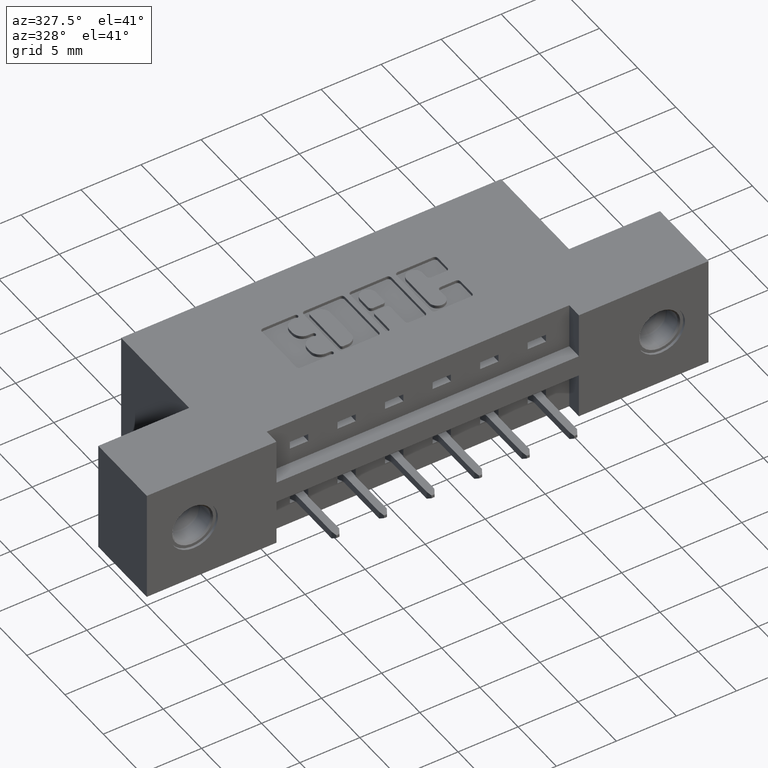
[diagram: clean part render]
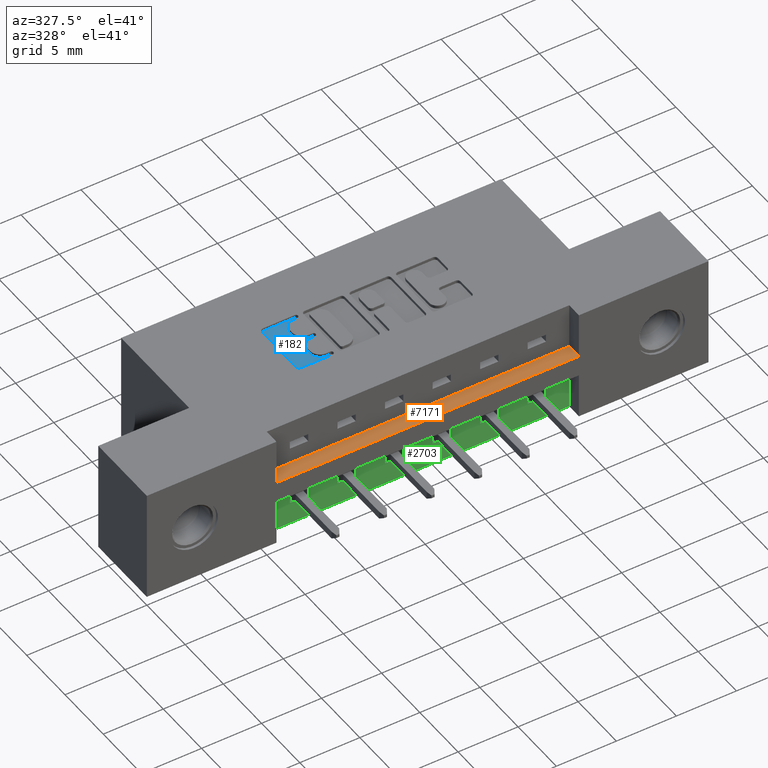
[diagram: same view with three faces highlighted in distinct colors, each labeled with its STEP entity id]
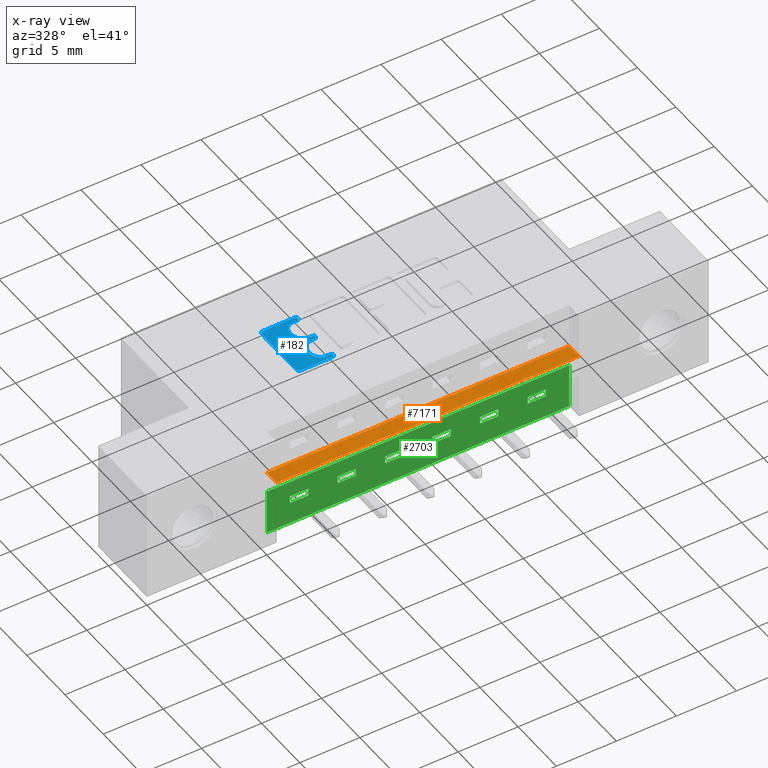
[diagram: x-ray of the same camera — body ghosted, the three highlighted faces saturated]
A machine part, auxiliary view with three faces highlighted in distinct colors.
The next image is the same camera in x-ray (body ghosted, the three faces saturated) — at least one of them is partly hidden behind the body in this view.
Their STEP definitions:

[orange] entity #7171 — the highlighted planar face has unit normal (0, 0, -1).
#111 = EDGE_LOOP ( 'NONE', ( #549, #5060, #7439, #4974 ) ) ;
#549 = ORIENTED_EDGE ( 'NONE', *, *, #8670, .T. ) ;
#586 = VECTOR ( 'NONE', #878, 39.37007874015748100 ) ;
#878 = DIRECTION ( 'NONE',  ( -0.0000000000000000000, -1.000000000000000000, -0.0000000000000000000 ) ) ;
#1045 = EDGE_CURVE ( 'NONE', #1609, #9760, #6385, .T. ) ;
#1527 = FACE_OUTER_BOUND ( 'NONE', #111, .T. ) ;
#1609 = VERTEX_POINT ( 'NONE', #3466 ) ;
#1728 = DIRECTION ( 'NONE',  ( 1.000000000000000000, 0.0000000000000000000, 0.0000000000000000000 ) ) ;
#2186 = PLANE ( 'NONE',  #8566 ) ;
#2775 = CARTESIAN_POINT ( 'NONE',  ( 0.4249999999999999300, 0.05000000000000000300, -0.1499999999999999900 ) ) ;
#2776 = VECTOR ( 'NONE', #1728, 39.37007874015748100 ) ;
#2945 = LINE ( 'NONE', #7231, #9450 ) ;
#3332 = LINE ( 'NONE', #2775, #10323 ) ;
#3466 = CARTESIAN_POINT ( 'NONE',  ( 0.4249999999999999300, 0.05000000000000000300, -0.1499999999999999900 ) ) ;
#3620 = CARTESIAN_POINT ( 'NONE',  ( 0.4249999999999999300, 0.05000000000000000300, -0.1499999999999999900 ) ) ;
#4246 = EDGE_CURVE ( 'NONE', #1609, #9060, #3332, .T. ) ;
#4576 = EDGE_CURVE ( 'NONE', #9760, #8152, #8820, .T. ) ;
#4974 = ORIENTED_EDGE ( 'NONE', *, *, #4246, .T. ) ;
#5060 = ORIENTED_EDGE ( 'NONE', *, *, #4576, .F. ) ;
#6268 = DIRECTION ( 'NONE',  ( -1.000000000000000000, 0.0000000000000000000, -0.0000000000000000000 ) ) ;
#6385 = LINE ( 'NONE', #3620, #2776 ) ;
#7171 = ADVANCED_FACE ( 'NONE', ( #1527 ), #2186, .F. ) ;
#7193 = CARTESIAN_POINT ( 'NONE',  ( 0.4249999999999999300, 0.05000000000000000300, -0.1499999999999999900 ) ) ;
#7231 = CARTESIAN_POINT ( 'NONE',  ( 0.4249999999999999300, 0.0000000000000000000, -0.1499999999999999900 ) ) ;
#7379 = CARTESIAN_POINT ( 'NONE',  ( 1.417000000000000700, 0.0000000000000000000, -0.1499999999999999900 ) ) ;
#7439 = ORIENTED_EDGE ( 'NONE', *, *, #1045, .F. ) ;
#8041 = DIRECTION ( 'NONE',  ( 1.000000000000000000, 0.0000000000000000000, 0.0000000000000000000 ) ) ;
#8152 = VERTEX_POINT ( 'NONE', #7379 ) ;
#8464 = CARTESIAN_POINT ( 'NONE',  ( 0.4249999999999999300, 0.0000000000000000000, -0.1499999999999999900 ) ) ;
#8517 = CARTESIAN_POINT ( 'NONE',  ( 1.417000000000000700, 0.05000000000000000300, -0.1499999999999999900 ) ) ;
#8566 = AXIS2_PLACEMENT_3D ( 'NONE', #7193, #10285, #6268 ) ;
#8670 = EDGE_CURVE ( 'NONE', #9060, #8152, #2945, .T. ) ;
#8820 = LINE ( 'NONE', #8894, #586 ) ;
#8894 = CARTESIAN_POINT ( 'NONE',  ( 1.417000000000000700, 0.05000000000000000300, -0.1499999999999999900 ) ) ;
#9060 = VERTEX_POINT ( 'NONE', #8464 ) ;
#9310 = DIRECTION ( 'NONE',  ( -0.0000000000000000000, -1.000000000000000000, -0.0000000000000000000 ) ) ;
#9450 = VECTOR ( 'NONE', #8041, 39.37007874015748100 ) ;
#9760 = VERTEX_POINT ( 'NONE', #8517 ) ;
#10285 = DIRECTION ( 'NONE',  ( 0.0000000000000000000, 0.0000000000000000000, -1.000000000000000000 ) ) ;
#10323 = VECTOR ( 'NONE', #9310, 39.37007874015748100 ) ;

[blue] entity #182 — the highlighted planar face has unit normal (0, 0, 1).
#39 = EDGE_CURVE ( 'NONE', #3033, #3587, #3170, .T. ) ;
#74 = CARTESIAN_POINT ( 'NONE',  ( 0.7541336064154146000, 0.2268432979619851300, -0.01000000000000000000 ) ) ;
#98 = ORIENTED_EDGE ( 'NONE', *, *, #3028, .T. ) ;
#121 = CARTESIAN_POINT ( 'NONE',  ( 0.7541336064154146000, 0.2405852362473096300, -0.01000000000000000000 ) ) ;
#182 = ADVANCED_FACE ( 'NONE', ( #1316 ), #8324, .T. ) ;
#191 = AXIS2_PLACEMENT_3D ( 'NONE', #386, #2005, #5927 ) ;
#256 = VERTEX_POINT ( 'NONE', #4702 ) ;
#288 = CIRCLE ( 'NONE', #4145, 0.03141014465218178200 ) ;
#386 = CARTESIAN_POINT ( 'NONE',  ( 0.0000000000000000000, 0.0000000000000000000, -0.01000000000000000000 ) ) ;
#434 = CIRCLE ( 'NONE', #2044, 0.006870969142648433200 ) ;
#544 = DIRECTION ( 'NONE',  ( 1.000000000000000000, 0.0000000000000000000, 0.0000000000000000000 ) ) ;
#592 = VERTEX_POINT ( 'NONE', #2883 ) ;
#595 = AXIS2_PLACEMENT_3D ( 'NONE', #8944, #8978, #9753 ) ;
#635 = CIRCLE ( 'NONE', #1862, 0.009815670203822599700 ) ;
#646 = CARTESIAN_POINT ( 'NONE',  ( 0.7541336065353102500, 0.3250000000000197700, -0.01000000000000000000 ) ) ;
#680 = CARTESIAN_POINT ( 'NONE',  ( 0.7406370600051098700, 0.2405852362473080200, -0.01000000000000000000 ) ) ;
#785 = EDGE_CURVE ( 'NONE', #6462, #3033, #434, .T. ) ;
#882 = VERTEX_POINT ( 'NONE', #74 ) ;
#937 = VECTOR ( 'NONE', #6836, 39.37007874015748100 ) ;
#981 = DIRECTION ( 'NONE',  ( -1.000000000000000000, 0.0000000000000000000, 0.0000000000000000000 ) ) ;
#991 = ORIENTED_EDGE ( 'NONE', *, *, #1062, .T. ) ;
#1018 = ORIENTED_EDGE ( 'NONE', *, *, #5808, .T. ) ;
#1021 = AXIS2_PLACEMENT_3D ( 'NONE', #6566, #8936, #2560 ) ;
#1062 = EDGE_CURVE ( 'NONE', #5584, #8568, #8527, .T. ) ;
#1113 = CARTESIAN_POINT ( 'NONE',  ( 0.6498421106199189200, 0.2268432979619843800, -0.01000000000000000000 ) ) ;
#1163 = VECTOR ( 'NONE', #4739, 39.37007874015748100 ) ;
#1180 = LINE ( 'NONE', #9050, #5156 ) ;
#1233 = DIRECTION ( 'NONE',  ( 1.000000000000000000, 7.203446383881654600E-015, 0.0000000000000000000 ) ) ;
#1279 = DIRECTION ( 'NONE',  ( 0.0000000000000000000, 1.000000000000000000, -0.0000000000000000000 ) ) ;
#1280 = LINE ( 'NONE', #9536, #1163 ) ;
#1303 = EDGE_LOOP ( 'NONE', ( #6155, #1018, #6982, #4172, #8556, #8294, #98, #2446, #8853, #1639, #991, #2586, #5839, #2207, #7616, #6796, #9842, #10311, #1806, #9518, #7464 ) ) ;
#1316 = FACE_OUTER_BOUND ( 'NONE', #1303, .T. ) ;
#1399 = CIRCLE ( 'NONE', #2620, 0.006870969142663458500 ) ;
#1519 = AXIS2_PLACEMENT_3D ( 'NONE', #4906, #1730, #8935 ) ;
#1639 = ORIENTED_EDGE ( 'NONE', *, *, #5989, .T. ) ;
#1653 = CIRCLE ( 'NONE', #6619, 0.03141014465221592800 ) ;
#1658 = EDGE_CURVE ( 'NONE', #7091, #1902, #288, .T. ) ;
#1730 = DIRECTION ( 'NONE',  ( -0.0000000000000000000, 0.0000000000000000000, 1.000000000000000000 ) ) ;
#1806 = ORIENTED_EDGE ( 'NONE', *, *, #8518, .T. ) ;
#1862 = AXIS2_PLACEMENT_3D ( 'NONE', #7963, #4760, #4229 ) ;
#1902 = VERTEX_POINT ( 'NONE', #680 ) ;
#1949 = AXIS2_PLACEMENT_3D ( 'NONE', #6256, #3043, #8624 ) ;
#1952 = CIRCLE ( 'NONE', #1021, 0.03141014465215624000 ) ;
#2005 = DIRECTION ( 'NONE',  ( -0.0000000000000000000, 0.0000000000000000000, 1.000000000000000000 ) ) ;
#2007 = DIRECTION ( 'NONE',  ( -0.0000000000000000000, 0.0000000000000000000, 1.000000000000000000 ) ) ;
#2026 = EDGE_CURVE ( 'NONE', #8503, #4735, #7869, .T. ) ;
#2044 = AXIS2_PLACEMENT_3D ( 'NONE', #6989, #3022, #8703 ) ;
#2151 = CARTESIAN_POINT ( 'NONE',  ( 0.7541336065353515500, 0.4162857328953856700, -0.01000000000000000000 ) ) ;
#2154 = CIRCLE ( 'NONE', #1519, 0.006870969142663458500 ) ;
#2207 = ORIENTED_EDGE ( 'NONE', *, *, #5821, .T. ) ;
#2320 = CARTESIAN_POINT ( 'NONE',  ( 0.7406370600050843400, 0.3318709691426832700, -0.01000000000000000000 ) ) ;
#2389 = CARTESIAN_POINT ( 'NONE',  ( 0.6400264404161156700, 0.2366589681657893500, -0.01000000000000000000 ) ) ;
#2409 = CARTESIAN_POINT ( 'NONE',  ( 0.7541336065353357900, 0.2337142671046473500, -0.01000000000000000000 ) ) ;
#2445 = DIRECTION ( 'NONE',  ( 1.000000000000000000, 0.0000000000000000000, 0.0000000000000000000 ) ) ;
#2446 = ORIENTED_EDGE ( 'NONE', *, *, #2026, .T. ) ;
#2530 = AXIS2_PLACEMENT_3D ( 'NONE', #2151, #6128, #6842 ) ;
#2560 = DIRECTION ( 'NONE',  ( 1.000000000000000000, 0.0000000000000000000, 0.0000000000000000000 ) ) ;
#2568 = AXIS2_PLACEMENT_3D ( 'NONE', #6767, #2007, #9997 ) ;
#2586 = ORIENTED_EDGE ( 'NONE', *, *, #7481, .T. ) ;
#2620 = AXIS2_PLACEMENT_3D ( 'NONE', #646, #9327, #2960 ) ;
#2880 = EDGE_CURVE ( 'NONE', #3587, #7550, #635, .T. ) ;
#2883 = CARTESIAN_POINT ( 'NONE',  ( 0.7092269153529280300, 0.2867188862051999700, -0.01000000000000000000 ) ) ;
#2960 = DIRECTION ( 'NONE',  ( 1.000000000000000000, 0.0000000000000000000, 0.0000000000000000000 ) ) ;
#3022 = DIRECTION ( 'NONE',  ( -0.0000000000000000000, 0.0000000000000000000, 1.000000000000000000 ) ) ;
#3028 = EDGE_CURVE ( 'NONE', #7550, #8503, #9229, .T. ) ;
#3033 = VERTEX_POINT ( 'NONE', #8957 ) ;
#3040 = LINE ( 'NONE', #6794, #937 ) ;
#3043 = DIRECTION ( 'NONE',  ( -0.0000000000000000000, 0.0000000000000000000, 1.000000000000000000 ) ) ;
#3089 = VECTOR ( 'NONE', #3367, 39.37007874015748100 ) ;
#3092 = CARTESIAN_POINT ( 'NONE',  ( 0.6400264404161156700, 0.4133410318342095000, -0.01000000000000000000 ) ) ;
#3170 = LINE ( 'NONE', #4903, #10179 ) ;
#3187 = CIRCLE ( 'NONE', #2530, 0.006870969142648433200 ) ;
#3367 = DIRECTION ( 'NONE',  ( 0.0000000000000000000, -1.000000000000000000, 0.0000000000000000000 ) ) ;
#3532 = CARTESIAN_POINT ( 'NONE',  ( 0.7092269153529097100, 0.0000000000000000000, -0.01000000000000000000 ) ) ;
#3541 = DIRECTION ( 'NONE',  ( -0.0000000000000000000, 0.0000000000000000000, 1.000000000000000000 ) ) ;
#3587 = VERTEX_POINT ( 'NONE', #10063 ) ;
#3789 = LINE ( 'NONE', #4414, #4543 ) ;
#4089 = CARTESIAN_POINT ( 'NONE',  ( 0.0000000000000000000, 0.3318709691426832700, -0.01000000000000000000 ) ) ;
#4145 = AXIS2_PLACEMENT_3D ( 'NONE', #6017, #3541, #8452 ) ;
#4172 = ORIENTED_EDGE ( 'NONE', *, *, #785, .T. ) ;
#4229 = DIRECTION ( 'NONE',  ( 1.000000000000000000, 0.0000000000000000000, 0.0000000000000000000 ) ) ;
#4309 = EDGE_CURVE ( 'NONE', #5062, #6462, #3187, .T. ) ;
#4414 = CARTESIAN_POINT ( 'NONE',  ( -1.634053534412011400E-015, 0.2268432979619796900, -0.01000000000000000000 ) ) ;
#4421 = CARTESIAN_POINT ( 'NONE',  ( 0.7092269153529280300, 0.0000000000000000000, -0.01000000000000000000 ) ) ;
#4438 = VERTEX_POINT ( 'NONE', #6277 ) ;
#4486 = VERTEX_POINT ( 'NONE', #9639 ) ;
#4495 = VERTEX_POINT ( 'NONE', #7834 ) ;
#4496 = EDGE_CURVE ( 'NONE', #5925, #592, #1952, .T. ) ;
#4543 = VECTOR ( 'NONE', #1233, 39.37007874015748100 ) ;
#4702 = CARTESIAN_POINT ( 'NONE',  ( 0.7541336064153890700, 0.3181290308573562200, -0.01000000000000000000 ) ) ;
#4735 = VERTEX_POINT ( 'NONE', #1113 ) ;
#4739 = DIRECTION ( 'NONE',  ( -1.000000000000000000, -1.189163988687022500E-013, 0.0000000000000000000 ) ) ;
#4760 = DIRECTION ( 'NONE',  ( -0.0000000000000000000, 0.0000000000000000000, 1.000000000000000000 ) ) ;
#4886 = CARTESIAN_POINT ( 'NONE',  ( 0.7406370600050843400, 0.3181290308573562200, -0.01000000000000000000 ) ) ;
#4903 = CARTESIAN_POINT ( 'NONE',  ( 0.0000000000000000000, 0.4231567020380321300, -0.01000000000000000000 ) ) ;
#4906 = CARTESIAN_POINT ( 'NONE',  ( 0.7541336065353102500, 0.3250000000000197700, -0.01000000000000000000 ) ) ;
#5062 = VERTEX_POINT ( 'NONE', #5806 ) ;
#5137 = EDGE_CURVE ( 'NONE', #5463, #4438, #6660, .T. ) ;
#5156 = VECTOR ( 'NONE', #5779, 39.37007874015748100 ) ;
#5463 = VERTEX_POINT ( 'NONE', #9399 ) ;
#5584 = VERTEX_POINT ( 'NONE', #7876 ) ;
#5779 = DIRECTION ( 'NONE',  ( 1.000000000000000000, 0.0000000000000000000, 0.0000000000000000000 ) ) ;
#5806 = CARTESIAN_POINT ( 'NONE',  ( 0.7541336065353516600, 0.4094147637527351100, -0.01000000000000000000 ) ) ;
#5808 = EDGE_CURVE ( 'NONE', #7725, #5062, #3040, .T. ) ;
#5821 = EDGE_CURVE ( 'NONE', #7091, #592, #8790, .T. ) ;
#5839 = ORIENTED_EDGE ( 'NONE', *, *, #1658, .F. ) ;
#5925 = VERTEX_POINT ( 'NONE', #4886 ) ;
#5927 = DIRECTION ( 'NONE',  ( 1.000000000000000000, 0.0000000000000000000, 0.0000000000000000000 ) ) ;
#5989 = EDGE_CURVE ( 'NONE', #882, #5584, #10044, .T. ) ;
#6017 = CARTESIAN_POINT ( 'NONE',  ( 0.7406370600051098700, 0.2719953808994897700, -0.01000000000000000000 ) ) ;
#6128 = DIRECTION ( 'NONE',  ( -0.0000000000000000000, 0.0000000000000000000, 1.000000000000000000 ) ) ;
#6145 = CARTESIAN_POINT ( 'NONE',  ( 0.7406370600051257500, 0.4094147637527351100, -0.01000000000000000000 ) ) ;
#6155 = ORIENTED_EDGE ( 'NONE', *, *, #7369, .F. ) ;
#6174 = DIRECTION ( 'NONE',  ( -0.0000000000000000000, 0.0000000000000000000, 1.000000000000000000 ) ) ;
#6256 = CARTESIAN_POINT ( 'NONE',  ( 0.7406370600050843400, 0.3632811137948577800, -0.01000000000000000000 ) ) ;
#6277 = CARTESIAN_POINT ( 'NONE',  ( 0.7092269153529097100, 0.3780046191005191900, -0.01000000000000000000 ) ) ;
#6406 = EDGE_CURVE ( 'NONE', #5925, #256, #1180, .T. ) ;
#6462 = VERTEX_POINT ( 'NONE', #7537 ) ;
#6557 = EDGE_CURVE ( 'NONE', #4735, #882, #3789, .T. ) ;
#6566 = CARTESIAN_POINT ( 'NONE',  ( 0.7406370600050843400, 0.2867188862051999700, -0.01000000000000000000 ) ) ;
#6619 = AXIS2_PLACEMENT_3D ( 'NONE', #9330, #6174, #544 ) ;
#6660 = LINE ( 'NONE', #3532, #8427 ) ;
#6718 = DIRECTION ( 'NONE',  ( 0.0000000000000000000, 1.000000000000000000, -0.0000000000000000000 ) ) ;
#6767 = CARTESIAN_POINT ( 'NONE',  ( 0.7541336065353357900, 0.2337142671046473500, -0.01000000000000000000 ) ) ;
#6794 = CARTESIAN_POINT ( 'NONE',  ( 0.0000000000000000000, 0.4094147637527351100, -0.01000000000000000000 ) ) ;
#6796 = ORIENTED_EDGE ( 'NONE', *, *, #6406, .T. ) ;
#6836 = DIRECTION ( 'NONE',  ( 1.000000000000000000, 0.0000000000000000000, 0.0000000000000000000 ) ) ;
#6842 = DIRECTION ( 'NONE',  ( 1.000000000000000000, 0.0000000000000000000, 0.0000000000000000000 ) ) ;
#6982 = ORIENTED_EDGE ( 'NONE', *, *, #4309, .T. ) ;
#6989 = CARTESIAN_POINT ( 'NONE',  ( 0.7541336065353515500, 0.4162857328953856700, -0.01000000000000000000 ) ) ;
#7091 = VERTEX_POINT ( 'NONE', #10040 ) ;
#7227 = DIRECTION ( 'NONE',  ( -0.0000000000000000000, 0.0000000000000000000, 1.000000000000000000 ) ) ;
#7265 = CIRCLE ( 'NONE', #1949, 0.03141014465217454400 ) ;
#7369 = EDGE_CURVE ( 'NONE', #7725, #4438, #1653, .T. ) ;
#7464 = ORIENTED_EDGE ( 'NONE', *, *, #5137, .T. ) ;
#7481 = EDGE_CURVE ( 'NONE', #8568, #1902, #1280, .T. ) ;
#7537 = CARTESIAN_POINT ( 'NONE',  ( 0.7610045756779999500, 0.4162857328953856700, -0.01000000000000000000 ) ) ;
#7550 = VERTEX_POINT ( 'NONE', #3092 ) ;
#7556 = VERTEX_POINT ( 'NONE', #2320 ) ;
#7616 = ORIENTED_EDGE ( 'NONE', *, *, #4496, .F. ) ;
#7718 = EDGE_CURVE ( 'NONE', #256, #4495, #1399, .T. ) ;
#7725 = VERTEX_POINT ( 'NONE', #6145 ) ;
#7834 = CARTESIAN_POINT ( 'NONE',  ( 0.7610045756779737500, 0.3250000000000197700, -0.01000000000000000000 ) ) ;
#7869 = CIRCLE ( 'NONE', #595, 0.009815670203805798900 ) ;
#7876 = CARTESIAN_POINT ( 'NONE',  ( 0.7610045756779980600, 0.2337142671046473500, -0.01000000000000000000 ) ) ;
#7963 = CARTESIAN_POINT ( 'NONE',  ( 0.6498421106199383500, 0.4133410318342095000, -0.01000000000000000000 ) ) ;
#8154 = CARTESIAN_POINT ( 'NONE',  ( 0.6400264404161156700, 0.0000000000000000000, -0.01000000000000000000 ) ) ;
#8294 = ORIENTED_EDGE ( 'NONE', *, *, #2880, .T. ) ;
#8324 = PLANE ( 'NONE',  #191 ) ;
#8427 = VECTOR ( 'NONE', #6718, 39.37007874015748100 ) ;
#8452 = DIRECTION ( 'NONE',  ( 1.000000000000000000, 0.0000000000000000000, 0.0000000000000000000 ) ) ;
#8503 = VERTEX_POINT ( 'NONE', #2389 ) ;
#8518 = EDGE_CURVE ( 'NONE', #4486, #7556, #9371, .T. ) ;
#8527 = CIRCLE ( 'NONE', #2568, 0.006870969142662229500 ) ;
#8556 = ORIENTED_EDGE ( 'NONE', *, *, #39, .T. ) ;
#8568 = VERTEX_POINT ( 'NONE', #121 ) ;
#8624 = DIRECTION ( 'NONE',  ( 1.000000000000000000, 0.0000000000000000000, 0.0000000000000000000 ) ) ;
#8703 = DIRECTION ( 'NONE',  ( 1.000000000000000000, 0.0000000000000000000, 0.0000000000000000000 ) ) ;
#8790 = LINE ( 'NONE', #4421, #9045 ) ;
#8853 = ORIENTED_EDGE ( 'NONE', *, *, #6557, .T. ) ;
#8932 = DIRECTION ( 'NONE',  ( -1.000000000000000000, 0.0000000000000000000, 0.0000000000000000000 ) ) ;
#8935 = DIRECTION ( 'NONE',  ( 1.000000000000000000, 0.0000000000000000000, 0.0000000000000000000 ) ) ;
#8936 = DIRECTION ( 'NONE',  ( -0.0000000000000000000, 0.0000000000000000000, 1.000000000000000000 ) ) ;
#8944 = CARTESIAN_POINT ( 'NONE',  ( 0.6498421106199224800, 0.2366589681657893500, -0.01000000000000000000 ) ) ;
#8957 = CARTESIAN_POINT ( 'NONE',  ( 0.7541336065353515500, 0.4231567020380321300, -0.01000000000000000000 ) ) ;
#8978 = DIRECTION ( 'NONE',  ( -0.0000000000000000000, 0.0000000000000000000, 1.000000000000000000 ) ) ;
#9045 = VECTOR ( 'NONE', #1279, 39.37007874015748100 ) ;
#9050 = CARTESIAN_POINT ( 'NONE',  ( 0.0000000000000000000, 0.3181290308573562200, -0.01000000000000000000 ) ) ;
#9124 = EDGE_CURVE ( 'NONE', #4495, #4486, #2154, .T. ) ;
#9229 = LINE ( 'NONE', #8154, #3089 ) ;
#9327 = DIRECTION ( 'NONE',  ( -0.0000000000000000000, 0.0000000000000000000, 1.000000000000000000 ) ) ;
#9330 = CARTESIAN_POINT ( 'NONE',  ( 0.7406370600051257500, 0.3780046191005191900, -0.01000000000000000000 ) ) ;
#9371 = LINE ( 'NONE', #4089, #9498 ) ;
#9399 = CARTESIAN_POINT ( 'NONE',  ( 0.7092269153529097100, 0.3632811137948577800, -0.01000000000000000000 ) ) ;
#9498 = VECTOR ( 'NONE', #981, 39.37007874015748100 ) ;
#9518 = ORIENTED_EDGE ( 'NONE', *, *, #9537, .F. ) ;
#9536 = CARTESIAN_POINT ( 'NONE',  ( -2.860952991549537100E-014, 0.2405852362472199500, -0.01000000000000000000 ) ) ;
#9537 = EDGE_CURVE ( 'NONE', #5463, #7556, #7265, .T. ) ;
#9639 = CARTESIAN_POINT ( 'NONE',  ( 0.7541336065353102500, 0.3318709691426832700, -0.01000000000000000000 ) ) ;
#9753 = DIRECTION ( 'NONE',  ( 1.000000000000000000, 0.0000000000000000000, 0.0000000000000000000 ) ) ;
#9842 = ORIENTED_EDGE ( 'NONE', *, *, #7718, .T. ) ;
#9997 = DIRECTION ( 'NONE',  ( 1.000000000000000000, 0.0000000000000000000, 0.0000000000000000000 ) ) ;
#10040 = CARTESIAN_POINT ( 'NONE',  ( 0.7092269153529280300, 0.2719953808994897700, -0.01000000000000000000 ) ) ;
#10044 = CIRCLE ( 'NONE', #10248, 0.006870969142662229500 ) ;
#10063 = CARTESIAN_POINT ( 'NONE',  ( 0.6498421106199383500, 0.4231567020380321300, -0.01000000000000000000 ) ) ;
#10179 = VECTOR ( 'NONE', #8932, 39.37007874015748100 ) ;
#10248 = AXIS2_PLACEMENT_3D ( 'NONE', #2409, #7227, #2445 ) ;
#10311 = ORIENTED_EDGE ( 'NONE', *, *, #9124, .T. ) ;

[green] entity #2703 — the highlighted planar face has unit normal (0, -1, 0).
#34 = DIRECTION ( 'NONE',  ( -0.0000000000000000000, -0.0000000000000000000, -1.000000000000000000 ) ) ;
#69 = CARTESIAN_POINT ( 'NONE',  ( 0.8129999999999999400, 0.05000000000000014800, -0.2975000000000001000 ) ) ;
#141 = ORIENTED_EDGE ( 'NONE', *, *, #3361, .F. ) ;
#184 = CARTESIAN_POINT ( 'NONE',  ( 0.5010000000000001100, 0.05000000000000000300, -0.3700000000000000000 ) ) ;
#185 = LINE ( 'NONE', #10034, #926 ) ;
#188 = CARTESIAN_POINT ( 'NONE',  ( 1.417000000000000700, 0.05000000000000000300, -0.2975000000000001000 ) ) ;
#189 = LINE ( 'NONE', #7453, #9283 ) ;
#248 = VECTOR ( 'NONE', #9679, 39.37007874015748100 ) ;
#289 = CARTESIAN_POINT ( 'NONE',  ( 1.417000000000000700, 0.05000000000000000300, -0.2725000000000000200 ) ) ;
#402 = VECTOR ( 'NONE', #8122, 39.37007874015748100 ) ;
#452 = EDGE_CURVE ( 'NONE', #1599, #2529, #2171, .T. ) ;
#489 = VERTEX_POINT ( 'NONE', #5179 ) ;
#495 = CARTESIAN_POINT ( 'NONE',  ( 1.124999999999999800, 0.05000000000000014800, -0.2975000000000001000 ) ) ;
#535 = CARTESIAN_POINT ( 'NONE',  ( 0.5610000000000000500, 0.05000000000000000300, -0.3700000000000000000 ) ) ;
#561 = DIRECTION ( 'NONE',  ( 0.0000000000000000000, 0.0000000000000000000, 1.000000000000000000 ) ) ;
#660 = VERTEX_POINT ( 'NONE', #495 ) ;
#717 = CARTESIAN_POINT ( 'NONE',  ( 1.417000000000000700, 0.05000000000000000300, -0.2725000000000000800 ) ) ;
#748 = ORIENTED_EDGE ( 'NONE', *, *, #452, .F. ) ;
#763 = LINE ( 'NONE', #4800, #8242 ) ;
#841 = ORIENTED_EDGE ( 'NONE', *, *, #1964, .F. ) ;
#883 = EDGE_CURVE ( 'NONE', #4332, #7562, #10031, .T. ) ;
#897 = LINE ( 'NONE', #3607, #1144 ) ;
#926 = VECTOR ( 'NONE', #7757, 39.37007874015748100 ) ;
#963 = ORIENTED_EDGE ( 'NONE', *, *, #3016, .T. ) ;
#976 = EDGE_CURVE ( 'NONE', #4944, #6680, #5644, .T. ) ;
#1099 = EDGE_CURVE ( 'NONE', #6324, #4332, #5998, .T. ) ;
#1144 = VECTOR ( 'NONE', #2628, 39.37007874015748100 ) ;
#1164 = EDGE_CURVE ( 'NONE', #8323, #10199, #9670, .T. ) ;
#1176 = EDGE_CURVE ( 'NONE', #8634, #2822, #185, .T. ) ;
#1350 = VERTEX_POINT ( 'NONE', #2487 ) ;
#1389 = ORIENTED_EDGE ( 'NONE', *, *, #5904, .T. ) ;
#1483 = VERTEX_POINT ( 'NONE', #2649 ) ;
#1492 = DIRECTION ( 'NONE',  ( -1.000000000000000000, 0.0000000000000000000, 0.0000000000000000000 ) ) ;
#1599 = VERTEX_POINT ( 'NONE', #9024 ) ;
#1616 = LINE ( 'NONE', #535, #5727 ) ;
#1683 = LINE ( 'NONE', #4111, #7412 ) ;
#1738 = FACE_OUTER_BOUND ( 'NONE', #10244, .T. ) ;
#1796 = ORIENTED_EDGE ( 'NONE', *, *, #8200, .F. ) ;
#1825 = ORIENTED_EDGE ( 'NONE', *, *, #2672, .F. ) ;
#1854 = CARTESIAN_POINT ( 'NONE',  ( 1.417000000000000700, 0.05000000000000000300, -0.3700000000000000000 ) ) ;
#1895 = VECTOR ( 'NONE', #8690, 39.37007874015748100 ) ;
#1932 = VERTEX_POINT ( 'NONE', #9504 ) ;
#1964 = EDGE_CURVE ( 'NONE', #5444, #9980, #5979, .T. ) ;
#1977 = LINE ( 'NONE', #7770, #5590 ) ;
#2014 = CARTESIAN_POINT ( 'NONE',  ( 1.280999999999999700, 0.05000000000000000300, -0.3700000000000000000 ) ) ;
#2035 = LINE ( 'NONE', #7594, #4648 ) ;
#2171 = LINE ( 'NONE', #3597, #8170 ) ;
#2224 = VERTEX_POINT ( 'NONE', #8302 ) ;
#2234 = EDGE_CURVE ( 'NONE', #8634, #1483, #9876, .T. ) ;
#2257 = ORIENTED_EDGE ( 'NONE', *, *, #9644, .F. ) ;
#2351 = CARTESIAN_POINT ( 'NONE',  ( 1.417000000000000700, 0.05000000000000000300, -0.2975000000000000400 ) ) ;
#2437 = ORIENTED_EDGE ( 'NONE', *, *, #8058, .T. ) ;
#2450 = EDGE_LOOP ( 'NONE', ( #4850, #963, #841, #8263 ) ) ;
#2478 = VERTEX_POINT ( 'NONE', #10257 ) ;
#2487 = CARTESIAN_POINT ( 'NONE',  ( 1.340999999999999700, 0.05000000000000001000, -0.2725000000000000200 ) ) ;
#2505 = DIRECTION ( 'NONE',  ( 0.0000000000000000000, 0.0000000000000000000, 1.000000000000000000 ) ) ;
#2510 = CARTESIAN_POINT ( 'NONE',  ( 0.5010000000000001100, 0.05000000000000014800, -0.2975000000000001000 ) ) ;
#2529 = VERTEX_POINT ( 'NONE', #8642 ) ;
#2600 = DIRECTION ( 'NONE',  ( 0.0000000000000000000, 0.0000000000000000000, 1.000000000000000000 ) ) ;
#2628 = DIRECTION ( 'NONE',  ( 0.0000000000000000000, 0.0000000000000000000, 1.000000000000000000 ) ) ;
#2649 = CARTESIAN_POINT ( 'NONE',  ( 1.028999999999999900, 0.05000000000000000300, -0.2975000000000001000 ) ) ;
#2672 = EDGE_CURVE ( 'NONE', #2224, #8736, #7849, .T. ) ;
#2703 = ADVANCED_FACE ( 'NONE', ( #1738, #6719, #6197, #6837, #5962, #7606, #4609 ), #7929, .T. ) ;
#2721 = VECTOR ( 'NONE', #8923, 39.37007874015748100 ) ;
#2794 = VERTEX_POINT ( 'NONE', #6265 ) ;
#2822 = VERTEX_POINT ( 'NONE', #9449 ) ;
#2873 = DIRECTION ( 'NONE',  ( 0.0000000000000000000, 0.0000000000000000000, 1.000000000000000000 ) ) ;
#2893 = EDGE_CURVE ( 'NONE', #7562, #5629, #4726, .T. ) ;
#2898 = VERTEX_POINT ( 'NONE', #69 ) ;
#2904 = LINE ( 'NONE', #5045, #8775 ) ;
#2976 = CARTESIAN_POINT ( 'NONE',  ( 0.8730000000000000000, 0.05000000000000000300, -0.3700000000000000000 ) ) ;
#3016 = EDGE_CURVE ( 'NONE', #4944, #9980, #6455, .T. ) ;
#3050 = DIRECTION ( 'NONE',  ( 0.0000000000000000000, -0.0000000000000000000, -1.000000000000000000 ) ) ;
#3094 = EDGE_LOOP ( 'NONE', ( #1825, #8660, #7964, #1796 ) ) ;
#3151 = DIRECTION ( 'NONE',  ( -1.000000000000000000, -0.0000000000000000000, -0.0000000000000000000 ) ) ;
#3192 = EDGE_CURVE ( 'NONE', #1350, #8620, #1977, .T. ) ;
#3211 = CARTESIAN_POINT ( 'NONE',  ( 0.9689999999999998600, 0.05000000000000014800, -0.2975000000000001000 ) ) ;
#3361 = EDGE_CURVE ( 'NONE', #2794, #6480, #4114, .T. ) ;
#3597 = CARTESIAN_POINT ( 'NONE',  ( 1.184999999999999800, 0.05000000000000000300, -0.3700000000000000000 ) ) ;
#3607 = CARTESIAN_POINT ( 'NONE',  ( 1.340999999999999700, 0.05000000000000000300, -0.3700000000000000000 ) ) ;
#3628 = DIRECTION ( 'NONE',  ( 0.0000000000000000000, 0.0000000000000000000, 1.000000000000000000 ) ) ;
#3690 = ORIENTED_EDGE ( 'NONE', *, *, #1164, .F. ) ;
#3757 = LINE ( 'NONE', #6237, #6615 ) ;
#3825 = CARTESIAN_POINT ( 'NONE',  ( 0.8730000000000000000, 0.05000000000000001000, -0.2725000000000000800 ) ) ;
#3841 = LINE ( 'NONE', #289, #9208 ) ;
#4111 = CARTESIAN_POINT ( 'NONE',  ( 1.124999999999999800, 0.05000000000000000300, -0.3700000000000000000 ) ) ;
#4114 = LINE ( 'NONE', #9565, #248 ) ;
#4125 = EDGE_CURVE ( 'NONE', #10199, #1932, #3841, .T. ) ;
#4149 = LINE ( 'NONE', #5692, #402 ) ;
#4175 = VECTOR ( 'NONE', #9962, 39.37007874015748100 ) ;
#4192 = EDGE_LOOP ( 'NONE', ( #10166, #4376, #141, #7813 ) ) ;
#4308 = CARTESIAN_POINT ( 'NONE',  ( 1.417000000000000700, 0.05000000000000000300, -0.2975000000000001000 ) ) ;
#4332 = VERTEX_POINT ( 'NONE', #9345 ) ;
#4376 = ORIENTED_EDGE ( 'NONE', *, *, #7684, .T. ) ;
#4515 = LINE ( 'NONE', #7211, #5242 ) ;
#4517 = VECTOR ( 'NONE', #3628, 39.37007874015748100 ) ;
#4609 = FACE_BOUND ( 'NONE', #3094, .T. ) ;
#4648 = VECTOR ( 'NONE', #9175, 39.37007874015748100 ) ;
#4654 = CARTESIAN_POINT ( 'NONE',  ( 1.417000000000000700, 0.05000000000000000300, -0.3700000000000000000 ) ) ;
#4660 = DIRECTION ( 'NONE',  ( 0.0000000000000000000, 0.0000000000000000000, 1.000000000000000000 ) ) ;
#4726 = LINE ( 'NONE', #6449, #8475 ) ;
#4786 = DIRECTION ( 'NONE',  ( 0.0000000000000000000, 0.0000000000000000000, 1.000000000000000000 ) ) ;
#4800 = CARTESIAN_POINT ( 'NONE',  ( 0.7170000000000000800, 0.05000000000000000300, -0.3700000000000000000 ) ) ;
#4808 = DIRECTION ( 'NONE',  ( -1.000000000000000000, 0.0000000000000000000, 0.0000000000000000000 ) ) ;
#4815 = CARTESIAN_POINT ( 'NONE',  ( 1.417000000000000700, 0.05000000000000000300, -0.2725000000000000200 ) ) ;
#4850 = ORIENTED_EDGE ( 'NONE', *, *, #976, .F. ) ;
#4944 = VERTEX_POINT ( 'NONE', #2510 ) ;
#5008 = LINE ( 'NONE', #6077, #9522 ) ;
#5045 = CARTESIAN_POINT ( 'NONE',  ( 0.8129999999999999400, 0.05000000000000000300, -0.3700000000000000000 ) ) ;
#5079 = DIRECTION ( 'NONE',  ( 0.0000000000000000000, 0.0000000000000000000, 1.000000000000000000 ) ) ;
#5081 = DIRECTION ( 'NONE',  ( 1.000000000000000000, 0.0000000000000000000, 0.0000000000000000000 ) ) ;
#5179 = CARTESIAN_POINT ( 'NONE',  ( 0.7170000000000000800, 0.05000000000000000300, -0.2975000000000001000 ) ) ;
#5186 = CARTESIAN_POINT ( 'NONE',  ( 0.5010000000000001100, 0.05000000000000001000, -0.2725000000000000800 ) ) ;
#5242 = VECTOR ( 'NONE', #4808, 39.37007874015748100 ) ;
#5253 = ORIENTED_EDGE ( 'NONE', *, *, #8214, .F. ) ;
#5289 = CARTESIAN_POINT ( 'NONE',  ( 0.5610000000000000500, 0.05000000000000001000, -0.2725000000000000800 ) ) ;
#5314 = DIRECTION ( 'NONE',  ( 0.0000000000000000000, 0.0000000000000000000, 1.000000000000000000 ) ) ;
#5321 = ORIENTED_EDGE ( 'NONE', *, *, #6998, .T. ) ;
#5359 = CARTESIAN_POINT ( 'NONE',  ( 1.124999999999999800, 0.05000000000000001000, -0.2725000000000000800 ) ) ;
#5444 = VERTEX_POINT ( 'NONE', #5289 ) ;
#5575 = CARTESIAN_POINT ( 'NONE',  ( 1.028999999999999900, 0.05000000000000001000, -0.2725000000000000800 ) ) ;
#5590 = VECTOR ( 'NONE', #1492, 39.37007874015748100 ) ;
#5628 = LINE ( 'NONE', #5667, #6741 ) ;
#5629 = VERTEX_POINT ( 'NONE', #8125 ) ;
#5644 = LINE ( 'NONE', #188, #4175 ) ;
#5667 = CARTESIAN_POINT ( 'NONE',  ( 0.6570000000000000300, 0.05000000000000000300, -0.3700000000000000000 ) ) ;
#5672 = ORIENTED_EDGE ( 'NONE', *, *, #1099, .T. ) ;
#5692 = CARTESIAN_POINT ( 'NONE',  ( 1.028999999999999900, 0.05000000000000000300, -0.3700000000000000000 ) ) ;
#5727 = VECTOR ( 'NONE', #5314, 39.37007874015748100 ) ;
#5765 = VECTOR ( 'NONE', #3151, 39.37007874015748100 ) ;
#5833 = DIRECTION ( 'NONE',  ( 1.000000000000000000, 0.0000000000000000000, 0.0000000000000000000 ) ) ;
#5904 = EDGE_CURVE ( 'NONE', #660, #8893, #1683, .T. ) ;
#5962 = FACE_BOUND ( 'NONE', #6589, .T. ) ;
#5979 = LINE ( 'NONE', #717, #9770 ) ;
#5998 = LINE ( 'NONE', #9343, #10022 ) ;
#6077 = CARTESIAN_POINT ( 'NONE',  ( 1.417000000000000700, 0.05000000000000000300, -0.2975000000000001000 ) ) ;
#6197 = FACE_BOUND ( 'NONE', #4192, .T. ) ;
#6199 = DIRECTION ( 'NONE',  ( 1.000000000000000000, 0.0000000000000000000, 0.0000000000000000000 ) ) ;
#6237 = CARTESIAN_POINT ( 'NONE',  ( 0.4249999999999999900, 0.05000000000000000300, -0.3700000000000000000 ) ) ;
#6265 = CARTESIAN_POINT ( 'NONE',  ( 0.7170000000000000800, 0.05000000000000001000, -0.2725000000000000800 ) ) ;
#6278 = VERTEX_POINT ( 'NONE', #5575 ) ;
#6324 = VERTEX_POINT ( 'NONE', #1854 ) ;
#6439 = ORIENTED_EDGE ( 'NONE', *, *, #2893, .T. ) ;
#6449 = CARTESIAN_POINT ( 'NONE',  ( 0.4249999999999999900, 0.05000000000000000300, -0.3700000000000000000 ) ) ;
#6455 = LINE ( 'NONE', #184, #2721 ) ;
#6480 = VERTEX_POINT ( 'NONE', #9949 ) ;
#6507 = VECTOR ( 'NONE', #561, 39.37007874015748100 ) ;
#6589 = EDGE_LOOP ( 'NONE', ( #9705, #7861, #2257, #5253 ) ) ;
#6615 = VECTOR ( 'NONE', #6199, 39.37007874015748100 ) ;
#6668 = DIRECTION ( 'NONE',  ( -1.000000000000000000, 0.0000000000000000000, 0.0000000000000000000 ) ) ;
#6680 = VERTEX_POINT ( 'NONE', #8319 ) ;
#6716 = CARTESIAN_POINT ( 'NONE',  ( 1.340999999999999700, 0.05000000000000000300, -0.2975000000000000400 ) ) ;
#6719 = FACE_BOUND ( 'NONE', #2450, .T. ) ;
#6741 = VECTOR ( 'NONE', #2505, 39.37007874015748100 ) ;
#6837 = FACE_BOUND ( 'NONE', #9127, .T. ) ;
#6998 = EDGE_CURVE ( 'NONE', #2898, #1932, #2904, .T. ) ;
#7021 = EDGE_CURVE ( 'NONE', #2898, #8323, #189, .T. ) ;
#7113 = EDGE_CURVE ( 'NONE', #660, #1599, #2035, .T. ) ;
#7165 = CARTESIAN_POINT ( 'NONE',  ( 0.4249999999999999900, 0.05000000000000000300, -0.2200000000000000000 ) ) ;
#7211 = CARTESIAN_POINT ( 'NONE',  ( 1.417000000000000700, 0.05000000000000000300, -0.2725000000000000200 ) ) ;
#7254 = CARTESIAN_POINT ( 'NONE',  ( 0.4249999999999999900, 0.05000000000000000300, -0.2200000000000000000 ) ) ;
#7401 = EDGE_CURVE ( 'NONE', #2478, #489, #5008, .T. ) ;
#7412 = VECTOR ( 'NONE', #4786, 39.37007874015748100 ) ;
#7453 = CARTESIAN_POINT ( 'NONE',  ( 1.417000000000000700, 0.05000000000000000300, -0.2975000000000001000 ) ) ;
#7562 = VERTEX_POINT ( 'NONE', #7254 ) ;
#7594 = CARTESIAN_POINT ( 'NONE',  ( 1.417000000000000700, 0.05000000000000000300, -0.2975000000000001000 ) ) ;
#7606 = FACE_BOUND ( 'NONE', #7714, .T. ) ;
#7684 = EDGE_CURVE ( 'NONE', #2478, #6480, #5628, .T. ) ;
#7714 = EDGE_LOOP ( 'NONE', ( #9879, #1389, #7717, #748 ) ) ;
#7717 = ORIENTED_EDGE ( 'NONE', *, *, #9886, .F. ) ;
#7757 = DIRECTION ( 'NONE',  ( 0.0000000000000000000, 0.0000000000000000000, 1.000000000000000000 ) ) ;
#7770 = CARTESIAN_POINT ( 'NONE',  ( 1.417000000000000700, 0.05000000000000000300, -0.2725000000000000200 ) ) ;
#7806 = DIRECTION ( 'NONE',  ( 1.000000000000000000, 0.0000000000000000000, 0.0000000000000000000 ) ) ;
#7813 = ORIENTED_EDGE ( 'NONE', *, *, #8501, .F. ) ;
#7849 = LINE ( 'NONE', #2351, #10238 ) ;
#7861 = ORIENTED_EDGE ( 'NONE', *, *, #1176, .T. ) ;
#7929 = PLANE ( 'NONE',  #9628 ) ;
#7964 = ORIENTED_EDGE ( 'NONE', *, *, #3192, .F. ) ;
#8058 = EDGE_CURVE ( 'NONE', #5629, #6324, #3757, .T. ) ;
#8087 = EDGE_CURVE ( 'NONE', #2224, #8620, #8753, .T. ) ;
#8122 = DIRECTION ( 'NONE',  ( 0.0000000000000000000, 0.0000000000000000000, 1.000000000000000000 ) ) ;
#8125 = CARTESIAN_POINT ( 'NONE',  ( 0.4249999999999999900, 0.05000000000000000300, -0.3700000000000000000 ) ) ;
#8170 = VECTOR ( 'NONE', #5079, 39.37007874015748100 ) ;
#8200 = EDGE_CURVE ( 'NONE', #8736, #1350, #897, .T. ) ;
#8214 = EDGE_CURVE ( 'NONE', #1483, #6278, #4149, .T. ) ;
#8242 = VECTOR ( 'NONE', #4660, 39.37007874015748100 ) ;
#8263 = ORIENTED_EDGE ( 'NONE', *, *, #8450, .F. ) ;
#8302 = CARTESIAN_POINT ( 'NONE',  ( 1.280999999999999700, 0.05000000000000014800, -0.2975000000000000400 ) ) ;
#8319 = CARTESIAN_POINT ( 'NONE',  ( 0.5610000000000000500, 0.05000000000000000300, -0.2975000000000001000 ) ) ;
#8323 = VERTEX_POINT ( 'NONE', #9108 ) ;
#8450 = EDGE_CURVE ( 'NONE', #6680, #5444, #1616, .T. ) ;
#8475 = VECTOR ( 'NONE', #34, 39.37007874015748100 ) ;
#8501 = EDGE_CURVE ( 'NONE', #489, #2794, #763, .T. ) ;
#8620 = VERTEX_POINT ( 'NONE', #9625 ) ;
#8634 = VERTEX_POINT ( 'NONE', #3211 ) ;
#8642 = CARTESIAN_POINT ( 'NONE',  ( 1.184999999999999800, 0.05000000000000001000, -0.2725000000000000800 ) ) ;
#8660 = ORIENTED_EDGE ( 'NONE', *, *, #8087, .T. ) ;
#8666 = DIRECTION ( 'NONE',  ( 0.0000000000000000000, -1.000000000000000000, 0.0000000000000000000 ) ) ;
#8690 = DIRECTION ( 'NONE',  ( -1.000000000000000000, 0.0000000000000000000, 0.0000000000000000000 ) ) ;
#8732 = ORIENTED_EDGE ( 'NONE', *, *, #4125, .F. ) ;
#8736 = VERTEX_POINT ( 'NONE', #6716 ) ;
#8753 = LINE ( 'NONE', #2014, #4517 ) ;
#8775 = VECTOR ( 'NONE', #2600, 39.37007874015748100 ) ;
#8797 = DIRECTION ( 'NONE',  ( -1.000000000000000000, 0.0000000000000000000, 0.0000000000000000000 ) ) ;
#8893 = VERTEX_POINT ( 'NONE', #5359 ) ;
#8923 = DIRECTION ( 'NONE',  ( 0.0000000000000000000, 0.0000000000000000000, 1.000000000000000000 ) ) ;
#9024 = CARTESIAN_POINT ( 'NONE',  ( 1.184999999999999800, 0.05000000000000000300, -0.2975000000000001000 ) ) ;
#9108 = CARTESIAN_POINT ( 'NONE',  ( 0.8730000000000000000, 0.05000000000000000300, -0.2975000000000001000 ) ) ;
#9127 = EDGE_LOOP ( 'NONE', ( #10111, #5321, #8732, #3690 ) ) ;
#9175 = DIRECTION ( 'NONE',  ( 1.000000000000000000, 0.0000000000000000000, 0.0000000000000000000 ) ) ;
#9208 = VECTOR ( 'NONE', #6668, 39.37007874015748100 ) ;
#9236 = ORIENTED_EDGE ( 'NONE', *, *, #883, .T. ) ;
#9283 = VECTOR ( 'NONE', #5833, 39.37007874015748100 ) ;
#9343 = CARTESIAN_POINT ( 'NONE',  ( 1.417000000000000700, 0.05000000000000000300, -0.3700000000000000000 ) ) ;
#9345 = CARTESIAN_POINT ( 'NONE',  ( 1.417000000000000700, 0.05000000000000000300, -0.2200000000000000000 ) ) ;
#9449 = CARTESIAN_POINT ( 'NONE',  ( 0.9689999999999998600, 0.05000000000000001000, -0.2725000000000000800 ) ) ;
#9504 = CARTESIAN_POINT ( 'NONE',  ( 0.8129999999999999400, 0.05000000000000001000, -0.2725000000000000800 ) ) ;
#9522 = VECTOR ( 'NONE', #7806, 39.37007874015748100 ) ;
#9565 = CARTESIAN_POINT ( 'NONE',  ( 1.417000000000000700, 0.05000000000000000300, -0.2725000000000000800 ) ) ;
#9625 = CARTESIAN_POINT ( 'NONE',  ( 1.280999999999999700, 0.05000000000000001000, -0.2725000000000000200 ) ) ;
#9628 = AXIS2_PLACEMENT_3D ( 'NONE', #4654, #8666, #3050 ) ;
#9637 = DIRECTION ( 'NONE',  ( 1.000000000000000000, 0.0000000000000000000, 0.0000000000000000000 ) ) ;
#9644 = EDGE_CURVE ( 'NONE', #6278, #2822, #9654, .T. ) ;
#9654 = LINE ( 'NONE', #4815, #1895 ) ;
#9670 = LINE ( 'NONE', #2976, #6507 ) ;
#9679 = DIRECTION ( 'NONE',  ( -1.000000000000000000, 0.0000000000000000000, 0.0000000000000000000 ) ) ;
#9705 = ORIENTED_EDGE ( 'NONE', *, *, #2234, .F. ) ;
#9770 = VECTOR ( 'NONE', #8797, 39.37007874015748100 ) ;
#9876 = LINE ( 'NONE', #4308, #9987 ) ;
#9879 = ORIENTED_EDGE ( 'NONE', *, *, #7113, .F. ) ;
#9886 = EDGE_CURVE ( 'NONE', #2529, #8893, #4515, .T. ) ;
#9949 = CARTESIAN_POINT ( 'NONE',  ( 0.6570000000000000300, 0.05000000000000001000, -0.2725000000000000800 ) ) ;
#9962 = DIRECTION ( 'NONE',  ( 1.000000000000000000, 0.0000000000000000000, 0.0000000000000000000 ) ) ;
#9980 = VERTEX_POINT ( 'NONE', #5186 ) ;
#9987 = VECTOR ( 'NONE', #5081, 39.37007874015748100 ) ;
#10022 = VECTOR ( 'NONE', #2873, 39.37007874015748100 ) ;
#10031 = LINE ( 'NONE', #7165, #5765 ) ;
#10034 = CARTESIAN_POINT ( 'NONE',  ( 0.9689999999999998600, 0.05000000000000000300, -0.3700000000000000000 ) ) ;
#10111 = ORIENTED_EDGE ( 'NONE', *, *, #7021, .F. ) ;
#10166 = ORIENTED_EDGE ( 'NONE', *, *, #7401, .F. ) ;
#10199 = VERTEX_POINT ( 'NONE', #3825 ) ;
#10238 = VECTOR ( 'NONE', #9637, 39.37007874015748100 ) ;
#10244 = EDGE_LOOP ( 'NONE', ( #2437, #5672, #9236, #6439 ) ) ;
#10257 = CARTESIAN_POINT ( 'NONE',  ( 0.6570000000000000300, 0.05000000000000014800, -0.2975000000000001000 ) ) ;